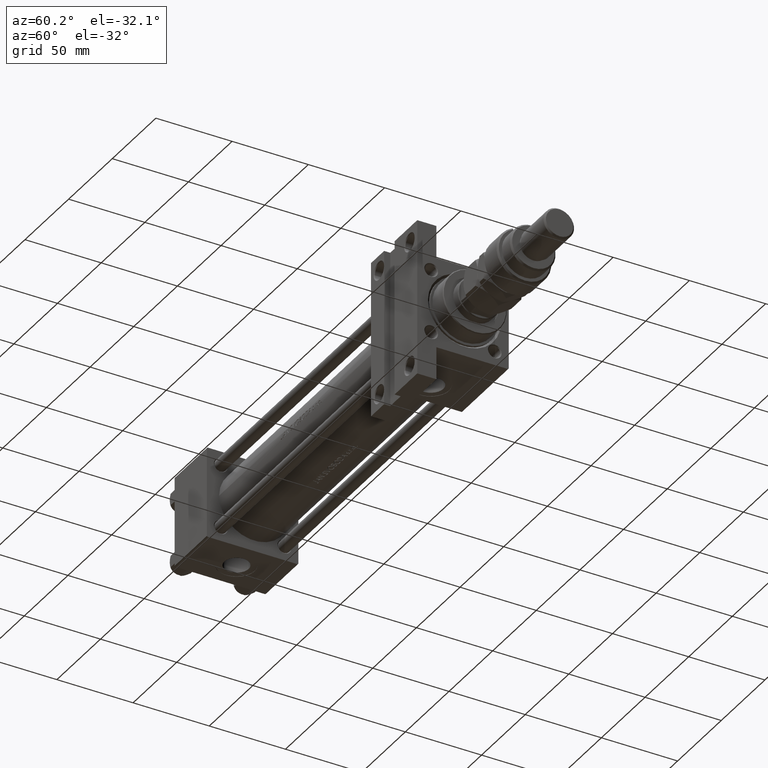
[diagram: clean part render]
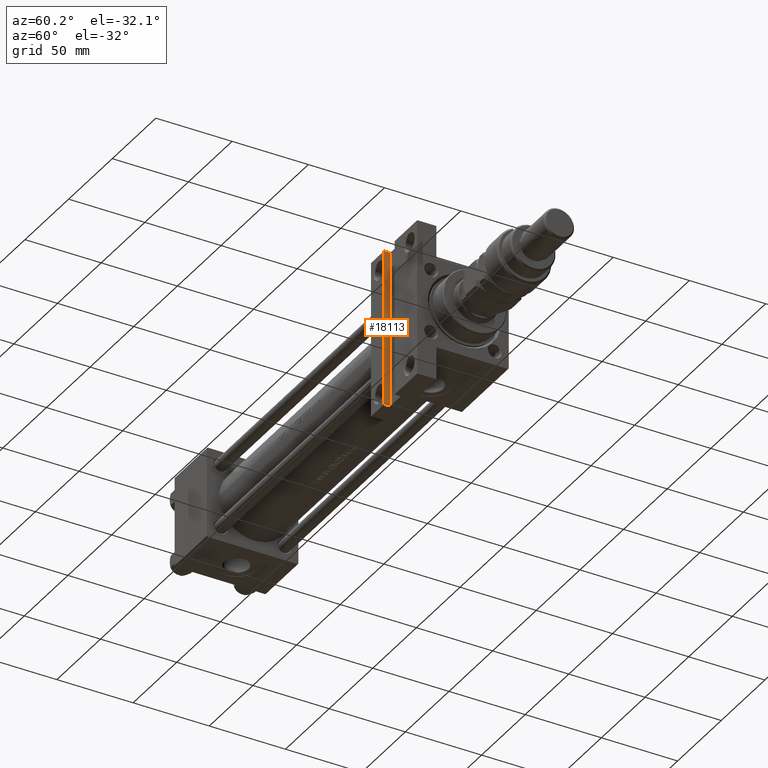
[diagram: same view with one face highlighted and labeled with its STEP entity id]
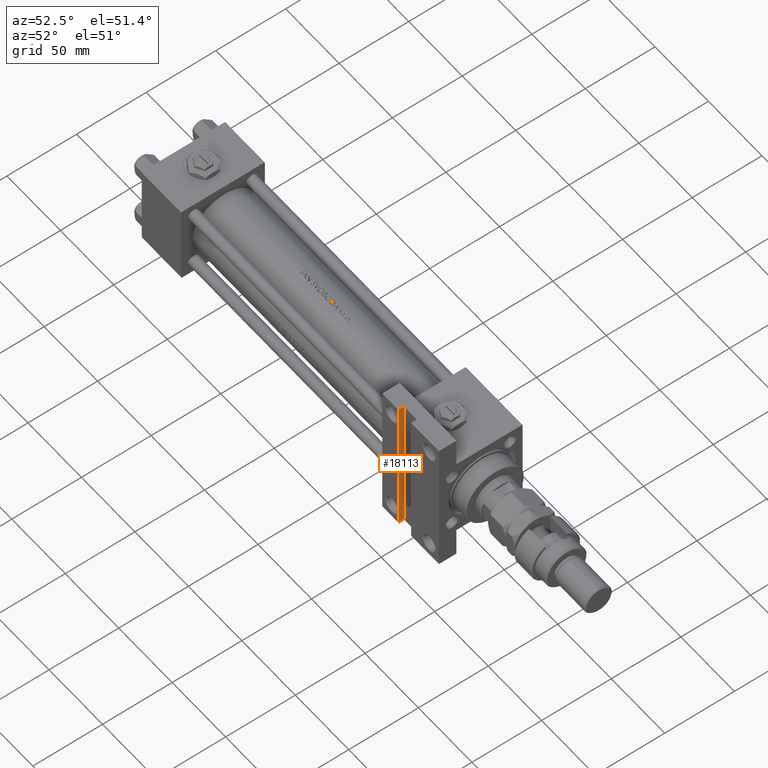
[diagram: same view with one face highlighted and labeled with its STEP entity id]
A machine part, auxiliary view. The second image highlights one B-rep face of the part: STEP entity #18113.
A second angle (auxiliary view) of the same face is appended — the face is thin or edge-on in the first view.
In plain terms, the highlighted planar face has unit normal (-1, 0, 0).
Its self-contained STEP definition (entity closure, byte-faithful):
#572 = VECTOR ( 'NONE', #7490, 1000.000000000000000 ) ;
#6237 = DIRECTION ( 'NONE',  ( -0.000000000000000000, -0.000000000000000000, -1.000000000000000000 ) ) ;
#6612 = LINE ( 'NONE', #40785, #7087 ) ;
#7087 = VECTOR ( 'NONE', #23160, 1000.000000000000000 ) ;
#7213 = VERTEX_POINT ( 'NONE', #33172 ) ;
#7490 = DIRECTION ( 'NONE',  ( 0.000000000000000000, 1.000000000000000000, 0.000000000000000000 ) ) ;
#9442 = EDGE_CURVE ( 'NONE', #25302, #35921, #42051, .T. ) ;
#9517 = VECTOR ( 'NONE', #18971, 1000.000000000000000 ) ;
#12770 = CARTESIAN_POINT ( 'NONE',  ( 240.0000000000000568, 51.49999999999997868, -25.99999999999999645 ) ) ;
#13119 = EDGE_CURVE ( 'NONE', #7213, #24567, #27666, .T. ) ;
#14283 = CARTESIAN_POINT ( 'NONE',  ( 240.0000000000000568, -51.49999999999997158, -29.99999999999999645 ) ) ;
#14637 = FACE_OUTER_BOUND ( 'NONE', #16974, .T. ) ;
#14902 = CARTESIAN_POINT ( 'NONE',  ( 240.0000000000000568, 51.49999999999997868, -25.99999999999999645 ) ) ;
#16974 = EDGE_LOOP ( 'NONE', ( #24508, #40215, #28626, #29571 ) ) ;
#17905 = DIRECTION ( 'NONE',  ( 0.000000000000000000, 0.000000000000000000, 1.000000000000000000 ) ) ;
#18113 = ADVANCED_FACE ( 'NONE', ( #14637 ), #35543, .F. ) ;
#18971 = DIRECTION ( 'NONE',  ( -0.000000000000000000, -0.000000000000000000, -1.000000000000000000 ) ) ;
#23160 = DIRECTION ( 'NONE',  ( 0.000000000000000000, 1.000000000000000000, 0.000000000000000000 ) ) ;
#24508 = ORIENTED_EDGE ( 'NONE', *, *, #35348, .T. ) ;
#24567 = VERTEX_POINT ( 'NONE', #14283 ) ;
#25302 = VERTEX_POINT ( 'NONE', #12770 ) ;
#27666 = LINE ( 'NONE', #39321, #29969 ) ;
#28626 = ORIENTED_EDGE ( 'NONE', *, *, #48631, .F. ) ;
#29571 = ORIENTED_EDGE ( 'NONE', *, *, #13119, .T. ) ;
#29969 = VECTOR ( 'NONE', #6237, 1000.000000000000000 ) ;
#31192 = CARTESIAN_POINT ( 'NONE',  ( 240.0000000000000568, -51.49999999999997158, -25.99999999999999645 ) ) ;
#33172 = CARTESIAN_POINT ( 'NONE',  ( 240.0000000000000568, -51.49999999999997158, -25.99999999999999645 ) ) ;
#35348 = EDGE_CURVE ( 'NONE', #24567, #35921, #48732, .T. ) ;
#35543 = PLANE ( 'NONE',  #46513 ) ;
#35921 = VERTEX_POINT ( 'NONE', #40377 ) ;
#39321 = CARTESIAN_POINT ( 'NONE',  ( 240.0000000000000568, -51.49999999999997158, -25.99999999999999645 ) ) ;
#40215 = ORIENTED_EDGE ( 'NONE', *, *, #9442, .F. ) ;
#40377 = CARTESIAN_POINT ( 'NONE',  ( 240.0000000000000568, 51.49999999999997868, -29.99999999999999645 ) ) ;
#40785 = CARTESIAN_POINT ( 'NONE',  ( 240.0000000000000568, -51.49999999999997158, -25.99999999999999645 ) ) ;
#42051 = LINE ( 'NONE', #14902, #9517 ) ;
#43122 = DIRECTION ( 'NONE',  ( -1.000000000000000000, 0.000000000000000000, 0.000000000000000000 ) ) ;
#44658 = CARTESIAN_POINT ( 'NONE',  ( 240.0000000000000568, -51.49999999999997158, -29.99999999999999645 ) ) ;
#46513 = AXIS2_PLACEMENT_3D ( 'NONE', #31192, #43122, #17905 ) ;
#48631 = EDGE_CURVE ( 'NONE', #7213, #25302, #6612, .T. ) ;
#48732 = LINE ( 'NONE', #44658, #572 ) ;